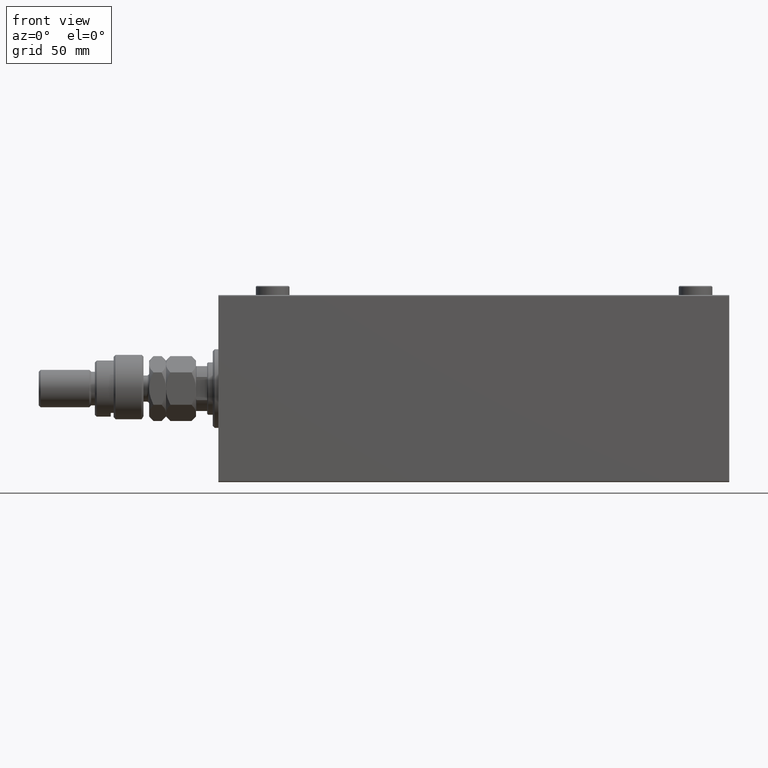
[diagram: clean part render]
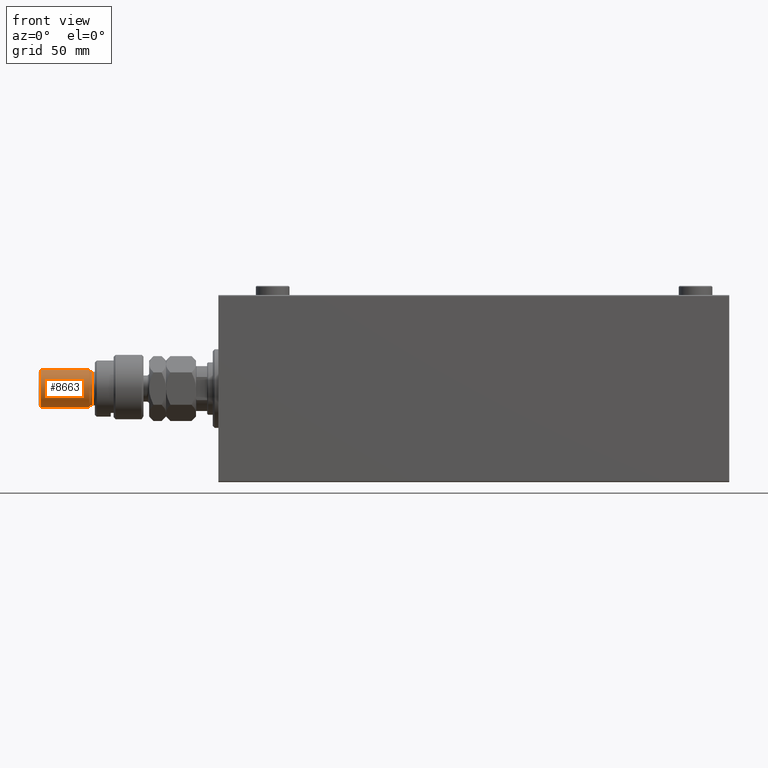
[diagram: same view with one face highlighted and labeled with its STEP entity id]
A machine part, front view. The second image highlights one B-rep face of the part: STEP entity #8663.
In plain terms, the highlighted cylindrical surface (edge-blend (fillet) strip) has radius 10 mm, axis along (1, -0, -0).
Its self-contained STEP definition (entity closure, byte-faithful):
#246 = ORIENTED_EDGE ( 'NONE', *, *, #4245, .T. ) ;
#696 = DIRECTION ( 'NONE',  ( 1.000000000000000000, 0.000000000000000000, 0.000000000000000000 ) ) ;
#3898 = DIRECTION ( 'NONE',  ( -0.000000000000000000, -0.000000000000000000, 1.000000000000000000 ) ) ;
#4245 = EDGE_CURVE ( 'NONE', #45350, #39857, #34420, .T. ) ;
#5938 = CARTESIAN_POINT ( 'NONE',  ( 10.00000000000000000, 1.224646799147353256E-15, 29.00000000000000711 ) ) ;
#6537 = EDGE_LOOP ( 'NONE', ( #6788, #14560, #246, #15764 ) ) ;
#6788 = ORIENTED_EDGE ( 'NONE', *, *, #18709, .F. ) ;
#7386 = AXIS2_PLACEMENT_3D ( 'NONE', #18096, #29368, #14905 ) ;
#8663 = ADVANCED_FACE ( 'NONE', ( #28699 ), #21344, .T. ) ;
#9284 = EDGE_CURVE ( 'NONE', #31323, #45350, #19923, .T. ) ;
#11389 = AXIS2_PLACEMENT_3D ( 'NONE', #19108, #3898, #696 ) ;
#12212 = CIRCLE ( 'NONE', #11389, 10.00000000000000000 ) ;
#13513 = VECTOR ( 'NONE', #30499, 1000.000000000000000 ) ;
#14265 = VERTEX_POINT ( 'NONE', #5938 ) ;
#14336 = CARTESIAN_POINT ( 'NONE',  ( 10.00000000000000000, 1.224646799147353256E-15, 56.00000000000000711 ) ) ;
#14560 = ORIENTED_EDGE ( 'NONE', *, *, #9284, .T. ) ;
#14905 = DIRECTION ( 'NONE',  ( 1.000000000000000000, 0.000000000000000000, 0.000000000000000000 ) ) ;
#15764 = ORIENTED_EDGE ( 'NONE', *, *, #46087, .T. ) ;
#17778 = LINE ( 'NONE', #14336, #21229 ) ;
#18096 = CARTESIAN_POINT ( 'NONE',  ( 0.000000000000000000, 0.000000000000000000, 54.99999999999998579 ) ) ;
#18169 = CARTESIAN_POINT ( 'NONE',  ( -10.00000000000000000, 0.000000000000000000, 54.99999999999998579 ) ) ;
#18709 = EDGE_CURVE ( 'NONE', #31323, #14265, #17778, .T. ) ;
#19108 = CARTESIAN_POINT ( 'NONE',  ( 0.000000000000000000, 0.000000000000000000, 29.00000000000000711 ) ) ;
#19923 = CIRCLE ( 'NONE', #7386, 10.00000000000000000 ) ;
#21229 = VECTOR ( 'NONE', #22174, 1000.000000000000000 ) ;
#21344 = CYLINDRICAL_SURFACE ( 'NONE', #23731, 10.00000000000000000 ) ;
#22174 = DIRECTION ( 'NONE',  ( -0.000000000000000000, -0.000000000000000000, -1.000000000000000000 ) ) ;
#23731 = AXIS2_PLACEMENT_3D ( 'NONE', #32853, #48321, #28939 ) ;
#28699 = FACE_OUTER_BOUND ( 'NONE', #6537, .T. ) ;
#28939 = DIRECTION ( 'NONE',  ( -1.000000000000000000, 0.000000000000000000, 0.000000000000000000 ) ) ;
#29368 = DIRECTION ( 'NONE',  ( 0.000000000000000000, 0.000000000000000000, -1.000000000000000000 ) ) ;
#30499 = DIRECTION ( 'NONE',  ( -0.000000000000000000, -0.000000000000000000, -1.000000000000000000 ) ) ;
#31323 = VERTEX_POINT ( 'NONE', #32295 ) ;
#32295 = CARTESIAN_POINT ( 'NONE',  ( 10.00000000000000000, 1.224646799147353256E-15, 54.99999999999998579 ) ) ;
#32853 = CARTESIAN_POINT ( 'NONE',  ( 0.000000000000000000, 0.000000000000000000, 56.00000000000000711 ) ) ;
#34420 = LINE ( 'NONE', #45735, #13513 ) ;
#38912 = CARTESIAN_POINT ( 'NONE',  ( -10.00000000000000000, 0.000000000000000000, 29.00000000000000711 ) ) ;
#39857 = VERTEX_POINT ( 'NONE', #38912 ) ;
#45350 = VERTEX_POINT ( 'NONE', #18169 ) ;
#45735 = CARTESIAN_POINT ( 'NONE',  ( -10.00000000000000000, 0.000000000000000000, 56.00000000000000711 ) ) ;
#46087 = EDGE_CURVE ( 'NONE', #39857, #14265, #12212, .T. ) ;
#48321 = DIRECTION ( 'NONE',  ( -0.000000000000000000, -0.000000000000000000, -1.000000000000000000 ) ) ;